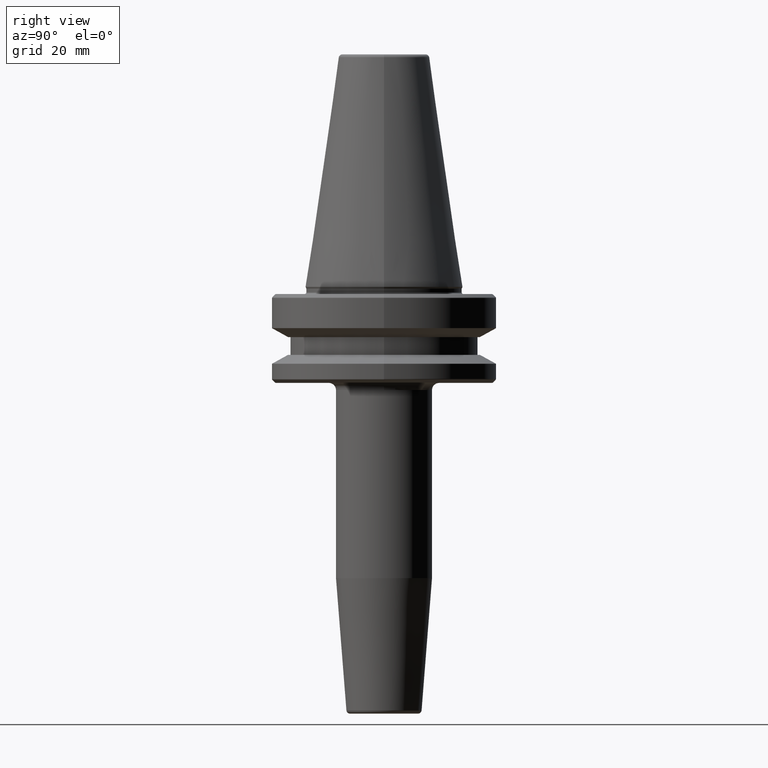
[diagram: clean part render]
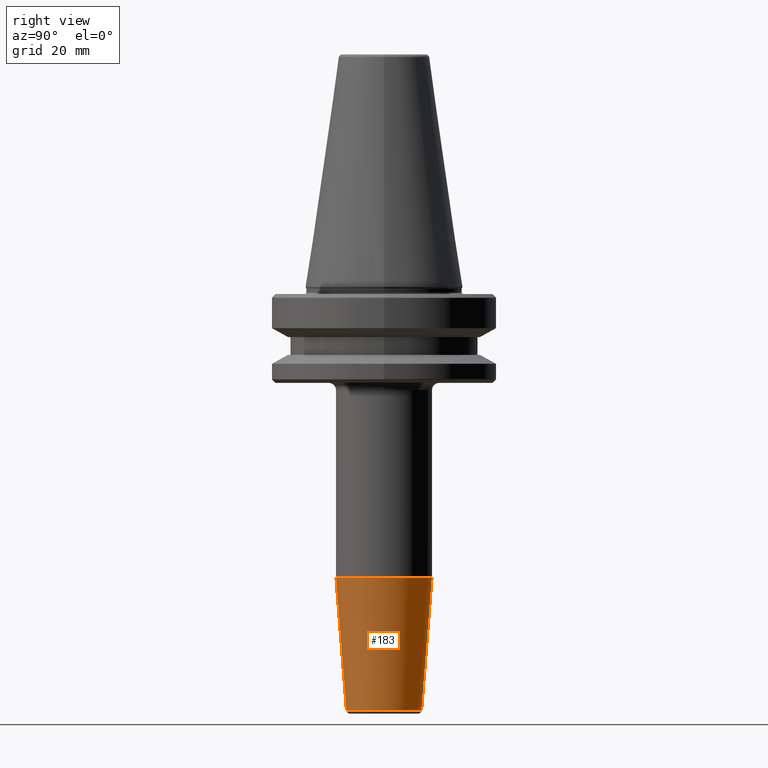
[diagram: same view with one face highlighted and labeled with its STEP entity id]
A machine part, right view. The second image highlights one B-rep face of the part: STEP entity #183.
In plain terms, the highlighted conical surface has half-angle 4.5 deg.
Its self-contained STEP definition (entity closure, byte-faithful):
#47 = ORIENTED_EDGE ( 'NONE', *, *, #356, .F. ) ;
#61 = CARTESIAN_POINT ( 'NONE',  ( 0.0000000000000000000, 3.035304478039067100E-015, -81.88138579146910000 ) ) ;
#117 = VECTOR ( 'NONE', #568, 1000.000000000000100 ) ;
#153 = CIRCLE ( 'NONE', #695, 13.49999999999999600 ) ;
#157 = DIRECTION ( 'NONE',  ( 0.0000000000000000000, 1.000000000000000000, 0.0000000000000000000 ) ) ;
#183 = ADVANCED_FACE ( 'NONE', ( #250 ), #1232, .T. ) ;
#188 = VERTEX_POINT ( 'NONE', #909 ) ;
#216 = EDGE_CURVE ( 'NONE', #288, #494, #220, .T. ) ;
#220 = LINE ( 'NONE', #1270, #490 ) ;
#250 = FACE_OUTER_BOUND ( 'NONE', #954, .T. ) ;
#252 = EDGE_CURVE ( 'NONE', #288, #188, #772, .T. ) ;
#262 = DIRECTION ( 'NONE',  ( -0.0000000000000000000, 5.530662963891270900E-017, -1.000000000000000000 ) ) ;
#288 = VERTEX_POINT ( 'NONE', #1046 ) ;
#342 = DIRECTION ( 'NONE',  ( 0.0000000000000000000, -1.000000000000000000, 0.0000000000000000000 ) ) ;
#355 = DIRECTION ( 'NONE',  ( -0.0000000000000000000, 5.530662963891270900E-017, -1.000000000000000000 ) ) ;
#356 = EDGE_CURVE ( 'NONE', #188, #809, #1158, .T. ) ;
#381 = CARTESIAN_POINT ( 'NONE',  ( 0.0000000000000000000, -10.57252684207490000, -119.0784590957278200 ) ) ;
#490 = VECTOR ( 'NONE', #942, 1000.000000000000100 ) ;
#494 = VERTEX_POINT ( 'NONE', #884 ) ;
#551 = EDGE_CURVE ( 'NONE', #494, #809, #153, .T. ) ;
#568 = DIRECTION ( 'NONE',  ( 0.0000000000000000000, -0.07845909572783113500, 0.9969173337331289600 ) ) ;
#579 = ORIENTED_EDGE ( 'NONE', *, *, #551, .T. ) ;
#638 = CARTESIAN_POINT ( 'NONE',  ( 0.0000000000000000000, 5.092549234929192300E-015, -119.0784590957278200 ) ) ;
#695 = AXIS2_PLACEMENT_3D ( 'NONE', #61, #262, #1273 ) ;
#745 = AXIS2_PLACEMENT_3D ( 'NONE', #947, #807, #342 ) ;
#772 = CIRCLE ( 'NONE', #1067, 10.57252684207490600 ) ;
#807 = DIRECTION ( 'NONE',  ( 0.0000000000000000000, -5.530662963891270900E-017, 1.000000000000000000 ) ) ;
#809 = VERTEX_POINT ( 'NONE', #1266 ) ;
#884 = CARTESIAN_POINT ( 'NONE',  ( 1.653273178848926300E-015, 13.50000000000000000, -81.88138579146910000 ) ) ;
#909 = CARTESIAN_POINT ( 'NONE',  ( 1.294761115604650600E-015, -10.57252684207490200, -119.0784590957278200 ) ) ;
#942 = DIRECTION ( 'NONE',  ( 9.608468044708409400E-018, 0.07845909572783102400, 0.9969173337331289600 ) ) ;
#947 = CARTESIAN_POINT ( 'NONE',  ( 0.0000000000000000000, 5.092549234929192300E-015, -119.0784590957278200 ) ) ;
#954 = EDGE_LOOP ( 'NONE', ( #981, #1017, #579, #47 ) ) ;
#981 = ORIENTED_EDGE ( 'NONE', *, *, #252, .F. ) ;
#1017 = ORIENTED_EDGE ( 'NONE', *, *, #216, .T. ) ;
#1046 = CARTESIAN_POINT ( 'NONE',  ( 0.0000000000000000000, 10.57252684207491300, -119.0784590957278200 ) ) ;
#1067 = AXIS2_PLACEMENT_3D ( 'NONE', #638, #355, #157 ) ;
#1158 = LINE ( 'NONE', #381, #117 ) ;
#1232 = CONICAL_SURFACE ( 'NONE', #745, 10.57252684207490600, 0.07853981633973092200 ) ;
#1266 = CARTESIAN_POINT ( 'NONE',  ( 0.0000000000000000000, -13.49999999999999300, -81.88138579146910000 ) ) ;
#1270 = CARTESIAN_POINT ( 'NONE',  ( 1.294761115604650600E-015, 10.57252684207491100, -119.0784590957278200 ) ) ;
#1273 = DIRECTION ( 'NONE',  ( 0.0000000000000000000, 1.000000000000000000, 0.0000000000000000000 ) ) ;